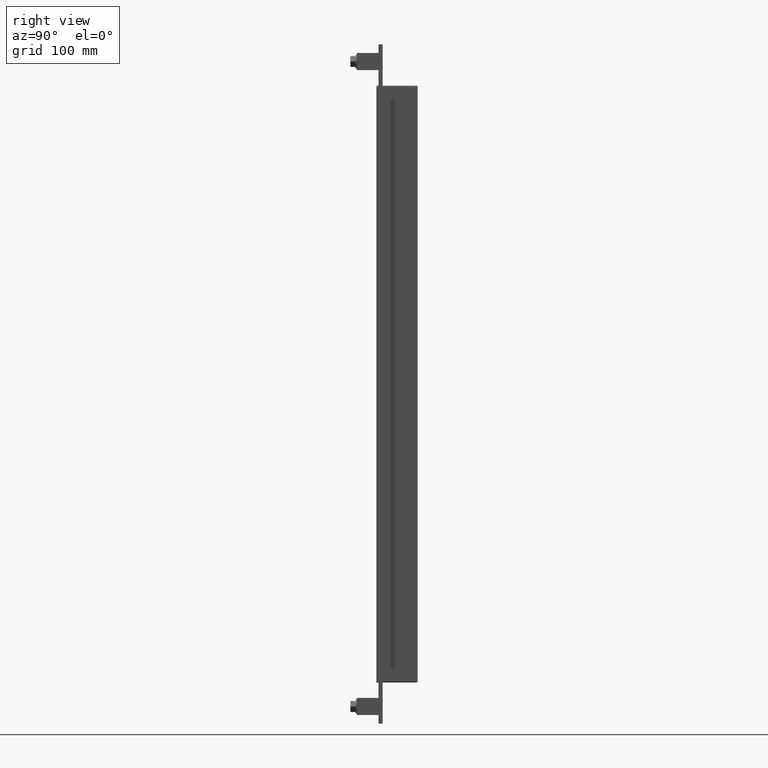
[diagram: clean part render]
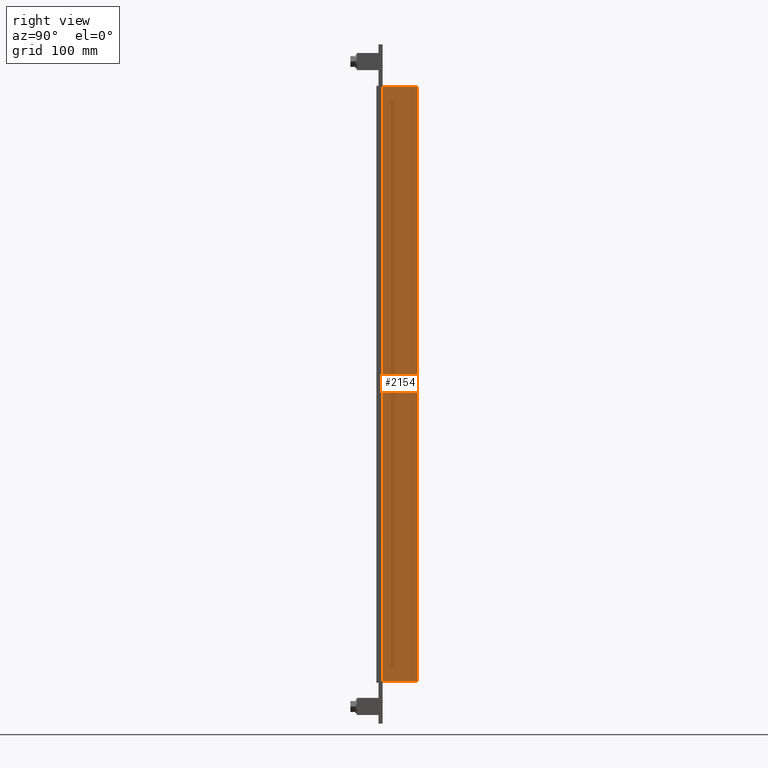
[diagram: same view with one face highlighted and labeled with its STEP entity id]
A machine part, right view. The second image highlights one B-rep face of the part: STEP entity #2154.
In plain terms, the highlighted planar face has unit normal (1, 0, 0).
Its self-contained STEP definition (entity closure, byte-faithful):
#1064=CARTESIAN_POINT('',(131.5,57.0,-433.00000000000006));
#1065=VERTEX_POINT('',#1064);
#1097=CARTESIAN_POINT('',(131.5,57.0,433.00000000000006));
#1098=VERTEX_POINT('',#1097);
#1106=CARTESIAN_POINT('',(131.5,57.0,433.0));
#1107=DIRECTION('',(0.0,0.0,-1.0));
#1108=VECTOR('',#1107,866.0);
#1109=LINE('',#1106,#1108);
#1110=EDGE_CURVE('',#1098,#1065,#1109,.T.);
#1460=CARTESIAN_POINT('',(131.5,6.000000000000001,-433.00000000000006));
#1461=VERTEX_POINT('',#1460);
#1469=CARTESIAN_POINT('',(131.5,6.000000000000001,433.00000000000006));
#1470=VERTEX_POINT('',#1469);
#1471=CARTESIAN_POINT('',(131.5,6.000000000000001,433.00000000000006));
#1472=DIRECTION('',(0.0,0.0,-1.0));
#1473=VECTOR('',#1472,866.00000000000023);
#1474=LINE('',#1471,#1473);
#1475=EDGE_CURVE('',#1470,#1461,#1474,.T.);
#1839=CARTESIAN_POINT('',(131.5,57.0,-433.00000000000006));
#1840=DIRECTION('',(0.0,-1.0,0.0));
#1841=VECTOR('',#1840,51.0);
#1842=LINE('',#1839,#1841);
#1843=EDGE_CURVE('',#1065,#1461,#1842,.T.);
#2132=CARTESIAN_POINT('',(131.5,6.000000000000001,433.00000000000006));
#2133=DIRECTION('',(0.0,1.0,0.0));
#2134=VECTOR('',#2133,51.0);
#2135=LINE('',#2132,#2134);
#2136=EDGE_CURVE('',#1470,#1098,#2135,.T.);
#2143=CARTESIAN_POINT('',(131.5,0.0,435.00000000000006));
#2144=DIRECTION('',(1.0,0.0,0.0));
#2145=DIRECTION('',(0.0,0.0,-1.0));
#2146=AXIS2_PLACEMENT_3D('',#2143,#2144,#2145);
#2147=PLANE('',#2146);
#2148=ORIENTED_EDGE('',*,*,#1475,.T.);
#2149=ORIENTED_EDGE('',*,*,#1843,.F.);
#2150=ORIENTED_EDGE('',*,*,#1110,.F.);
#2151=ORIENTED_EDGE('',*,*,#2136,.F.);
#2152=EDGE_LOOP('',(#2148,#2149,#2150,#2151));
#2153=FACE_OUTER_BOUND('',#2152,.T.);
#2154=ADVANCED_FACE('',(#2153),#2147,.T.);